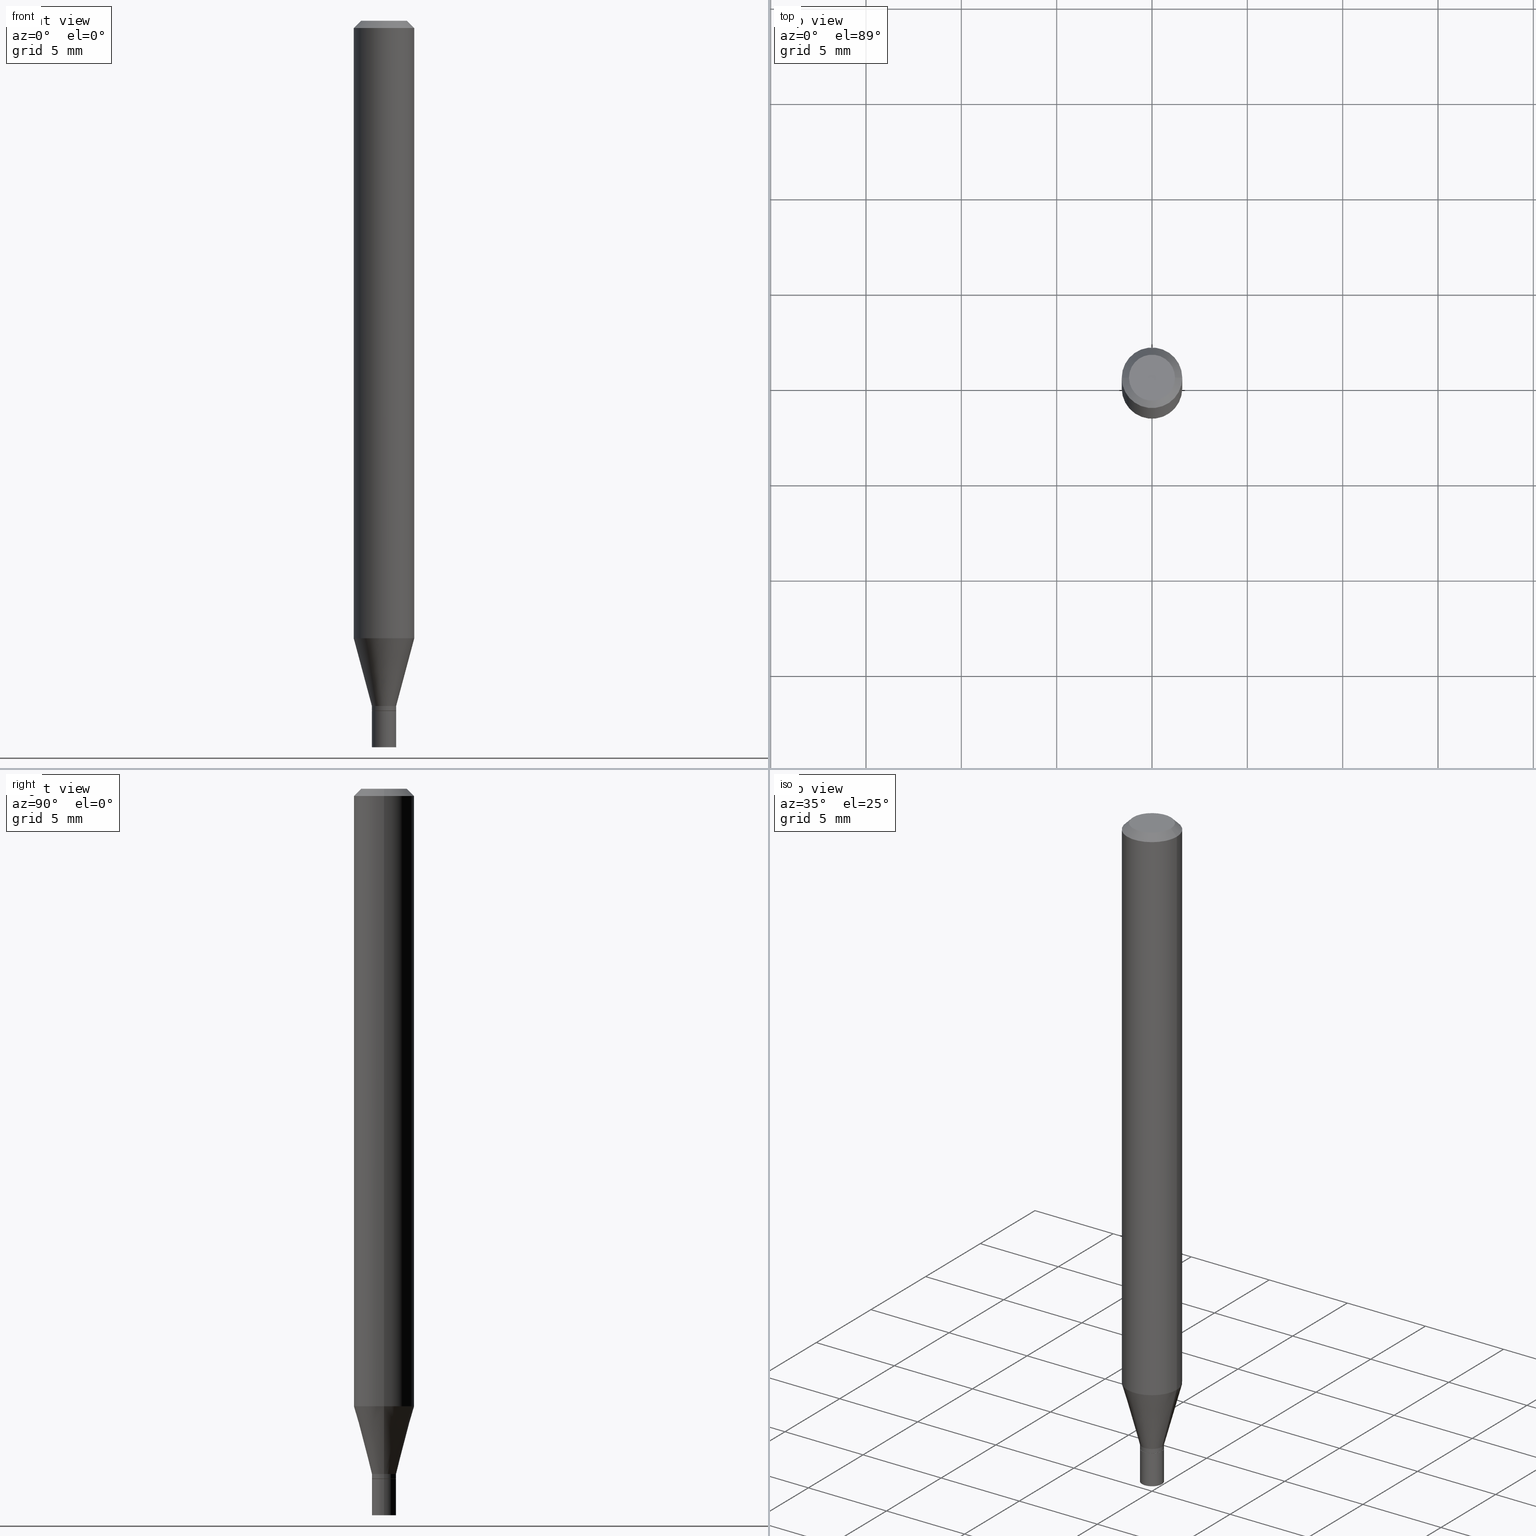
[diagram: canonical four-view strip — front | top / right | iso, engineering-drawing reading convention]
A machine part, canonical four-view strip (front | top / right | iso — engineering-drawing reading convention). The complete STEP part file that produces these views, byte-faithful:
ISO-10303-21;
HEADER;
FILE_DESCRIPTION (( 'STEP AP203' ),
    '1' );
FILE_NAME ('02377.STEP',
    '2024-03-18T20:18:09',
    ( '' ),
    ( '' ),
    'SwSTEP 2.0',
    'SolidWorks 2023',
    '' );
FILE_SCHEMA (( 'CONFIG_CONTROL_DESIGN' ));
ENDSEC;

DATA;
#1 = FACE_OUTER_BOUND ( 'NONE', #279, .T. ) ;
#2 = DIRECTION ( 'NONE',  ( -2.445468806185136597E-29, 3.491481338843145583E-15, 1.000000000000000000 ) ) ;
#3 = CARTESIAN_POINT ( 'NONE',  ( 0.000000000000000000, 0.000000000000000000, 0.000000000000000000 ) ) ;
#4 = DIRECTION ( 'NONE',  ( 1.000000000000000000, 0.000000000000000000, 0.000000000000000000 ) ) ;
#5 = CYLINDRICAL_SURFACE ( 'NONE', #457, 0.02500000000000000139 ) ;
#6 = EDGE_CURVE ( 'NONE', #87, #203, #281, .T. ) ;
#7 = DIRECTION ( 'NONE',  ( -2.445468806185136597E-29, 3.491481338843145583E-15, 1.000000000000000000 ) ) ;
#8 = CALENDAR_DATE ( 2024, 18, 3 ) ;
#9 = DIRECTION ( 'NONE',  ( -2.445468806185136597E-29, 3.491481338843145583E-15, 1.000000000000000000 ) ) ;
#10 = DATE_TIME_ROLE ( 'classification_date' ) ;
#11 = VERTEX_POINT ( 'NONE', #283 ) ;
#12 = FACE_OUTER_BOUND ( 'NONE', #309, .T. ) ;
#13 = CONICAL_SURFACE ( 'NONE', #227, 0.02450000000000000094, 0.7853981633974739252 ) ;
#14 = ORIENTED_EDGE ( 'NONE', *, *, #115, .T. ) ;
#15 = LINE ( 'NONE', #158, #332 ) ;
#16 = EDGE_CURVE ( 'NONE', #90, #98, #286, .T. ) ;
#17 = DIRECTION ( 'NONE',  ( 1.000000000000000000, -6.982962677686254878E-15, 0.000000000000000000 ) ) ;
#18 = CARTESIAN_POINT ( 'NONE',  ( -0.02450000000000000094, -4.801277937590258869E-15, -1.425000000000000266 ) ) ;
#19 = ORIENTED_EDGE ( 'NONE', *, *, #420, .F. ) ;
#20 = PERSON_AND_ORGANIZATION ( #206, #288 ) ;
#21 = AXIS2_PLACEMENT_3D ( 'NONE', #329, #263, #4 ) ;
#22 = ORIENTED_EDGE ( 'NONE', *, *, #243, .T. ) ;
#23 = CC_DESIGN_SECURITY_CLASSIFICATION ( #421, ( #451 ) ) ;
#24 = CARTESIAN_POINT ( 'NONE',  ( 3.483570314410727746E-29, -4.973615167182062460E-15, -1.424500000000000322 ) ) ;
#25 = ORIENTED_EDGE ( 'NONE', *, *, #331, .T. ) ;
#26 = EDGE_LOOP ( 'NONE', ( #303, #282, #52, #459 ) ) ;
#27 = ORIENTED_EDGE ( 'NONE', *, *, #16, .F. ) ;
#28 = AXIS2_PLACEMENT_3D ( 'NONE', #403, #231, #289 ) ;
#29 = EDGE_CURVE ( 'NONE', #128, #196, #361, .T. ) ;
#30 = DIRECTION ( 'NONE',  ( 1.000000000000000000, -6.982962677686267499E-15, 4.852736867747366768E-29 ) ) ;
#31 = CARTESIAN_POINT ( 'NONE',  ( 0.02450000000000000094, -5.146443493454796836E-15, -1.425000000000000266 ) ) ;
#32 = CARTESIAN_POINT ( 'NONE',  ( -0.02499999999999992853, 1.776356839400245386E-16, -1.229733772563722977E-30 ) ) ;
#33 = PRODUCT_DEFINITION ( 'UNKNOWN', '', #451, #318 ) ;
#34 = CIRCLE ( 'NONE', #442, 0.02450000000000000094 ) ;
#35 = AXIS2_PLACEMENT_3D ( 'NONE', #170, #69, #211 ) ;
#36 = PLANE ( 'NONE',  #202 ) ;
#37 = CYLINDRICAL_SURFACE ( 'NONE', #310, 0.06250000000000000000 ) ;
#38 = APPROVAL_DATE_TIME ( #260, #384 ) ;
#39 = AXIS2_PLACEMENT_3D ( 'NONE', #365, #108, #394 ) ;
#40 = CONICAL_SURFACE ( 'NONE', #183, 0.02499999999999992853, 0.2617993877991500740 ) ;
#41 = PLANE ( 'NONE',  #174 ) ;
#42 = EDGE_CURVE ( 'NONE', #98, #90, #34, .T. ) ;
#43 = VERTEX_POINT ( 'NONE', #140 ) ;
#44 = DIRECTION ( 'NONE',  ( -2.445468806185136597E-29, 3.491481338843145583E-15, 1.000000000000000000 ) ) ;
#45 = ORIENTED_EDGE ( 'NONE', *, *, #424, .F. ) ;
#46 = ORIENTED_EDGE ( 'NONE', *, *, #151, .T. ) ;
#47 = EDGE_CURVE ( 'NONE', #117, #11, #301, .T. ) ;
#48 = DIRECTION ( 'NONE',  ( -2.445468806185136877E-29, 3.491481338843145188E-15, 1.000000000000000000 ) ) ;
#49 = CLOSED_SHELL ( 'NONE', ( #340, #234, #463, #65, #262, #248, #168, #63, #219, #298, #441, #371 ) ) ;
#50 = VECTOR ( 'NONE', #189, 39.37007874015748143 ) ;
#51 = LOCAL_TIME ( 16, 18, 9.000000000000000000, #334 ) ;
#52 = ORIENTED_EDGE ( 'NONE', *, *, #84, .F. ) ;
#53 = DIRECTION ( 'NONE',  ( 1.000000000000000000, -6.982962677686276177E-15, 0.000000000000000000 ) ) ;
#54 = DIRECTION ( 'NONE',  ( -2.445468806185136597E-29, 3.491481338843145583E-15, 1.000000000000000000 ) ) ;
#55 = CARTESIAN_POINT ( 'NONE',  ( 0.02499999999999992506, -5.148189234124218339E-15, -1.424500000000000322 ) ) ;
#56 = EDGE_CURVE ( 'NONE', #232, #376, #59, .T. ) ;
#57 = ORIENTED_EDGE ( 'NONE', *, *, #95, .T. ) ;
#58 = DIRECTION ( 'NONE',  ( -2.445468806185136597E-29, 3.491481338843145583E-15, 1.000000000000000000 ) ) ;
#59 = CIRCLE ( 'NONE', #156, 0.02499999999999992853 ) ;
#60 = ORIENTED_EDGE ( 'NONE', *, *, #380, .F. ) ;
#61 = EDGE_CURVE ( 'NONE', #204, #164, #427, .T. ) ;
#62 = ORIENTED_EDGE ( 'NONE', *, *, #121, .T. ) ;
#63 = ADVANCED_FACE ( 'NONE', ( #258 ), #238, .T. ) ;
#64 = CIRCLE ( 'NONE', #294, 0.02499999999999992506 ) ;
#65 = ADVANCED_FACE ( 'NONE', ( #391 ), #37, .T. ) ;
#66 = DIRECTION ( 'NONE',  ( 1.000000000000000000, -6.982962677686266711E-15, 4.876176775795935793E-29 ) ) ;
#67 = COORDINATED_UNIVERSAL_TIME_OFFSET ( 5, 0, .BEHIND. ) ;
#68 = DIRECTION ( 'NONE',  ( 1.000000000000000000, -6.982962677686274599E-15, 0.000000000000000000 ) ) ;
#69 = DIRECTION ( 'NONE',  ( -2.445468806185136597E-29, 3.491481338843145583E-15, 1.000000000000000000 ) ) ;
#70 = DIRECTION ( 'NONE',  ( -0.7071067811865604513, 2.468850131082393139E-15, -0.7071067811865343611 ) ) ;
#71 = AXIS2_PLACEMENT_3D ( 'NONE', #99, #2, #146 ) ;
#72 = VECTOR ( 'NONE', #362, 39.37007874015748143 ) ;
#73 = DIRECTION ( 'NONE',  ( 0.2588190451025213501, 1.565188264969621968E-15, 0.9659258262890682012 ) ) ;
#74 =( NAMED_UNIT ( * ) SI_UNIT ( $, .STERADIAN. ) SOLID_ANGLE_UNIT ( ) );
#75 = CC_DESIGN_PERSON_AND_ORGANIZATION_ASSIGNMENT ( #233, #456, ( #451 ) ) ;
#76 = DIRECTION ( 'NONE',  ( -0.7071067811865656694, 7.493145998870420424E-15, 0.7071067811865294761 ) ) ;
#77 = FACE_OUTER_BOUND ( 'NONE', #446, .T. ) ;
#78 = ORIENTED_EDGE ( 'NONE', *, *, #118, .F. ) ;
#79 = CARTESIAN_POINT ( 'NONE',  ( 3.483570314410727746E-29, -4.973615167182062460E-15, -1.424500000000000322 ) ) ;
#80 = DATE_AND_TIME ( #377, #175 ) ;
#81 = CIRCLE ( 'NONE', #240, 0.06250000000000000000 ) ;
#82 = CARTESIAN_POINT ( 'NONE',  ( 0.06250000000000000000, -4.364351673553916694E-16, 3.047610484872459871E-30 ) ) ;
#83 = ORIENTED_EDGE ( 'NONE', *, *, #314, .T. ) ;
#84 = EDGE_CURVE ( 'NONE', #128, #461, #359, .T. ) ;
#85 = EDGE_LOOP ( 'NONE', ( #205, #226, #62, #78 ) ) ;
#86 = PERSON_AND_ORGANIZATION ( #206, #288 ) ;
#87 = VERTEX_POINT ( 'NONE', #208 ) ;
#88 = CARTESIAN_POINT ( 'NONE',  ( 0.000000000000000000, 0.000000000000000000, 0.000000000000000000 ) ) ;
#89 = AXIS2_PLACEMENT_3D ( 'NONE', #221, #368, #68 ) ;
#90 = VERTEX_POINT ( 'NONE', #31 ) ;
#91 = CALENDAR_DATE ( 2024, 18, 3 ) ;
#92 = DIRECTION ( 'NONE',  ( -2.445468806185136597E-29, 3.491481338843145583E-15, 1.000000000000000000 ) ) ;
#93 = DIRECTION ( 'NONE',  ( 1.000000000000000000, -6.982962677686262766E-15, 0.000000000000000000 ) ) ;
#94 = EDGE_LOOP ( 'NONE', ( #46, #415, #358, #167 ) ) ;
#95 = EDGE_CURVE ( 'NONE', #203, #87, #109, .T. ) ;
#96 = CIRCLE ( 'NONE', #162, 0.02499999999999992506 ) ;
#97 = EDGE_LOOP ( 'NONE', ( #336, #458, #235, #460 ) ) ;
#98 = VERTEX_POINT ( 'NONE', #169 ) ;
#99 = CARTESIAN_POINT ( 'NONE',  ( 3.668203209277704895E-29, -5.237222008264718177E-15, -1.500000000000000222 ) ) ;
#100 = CARTESIAN_POINT ( 'NONE',  ( 3.484793048813820547E-29, -4.975360907851483175E-15, -1.425000000000000266 ) ) ;
#101 = AXIS2_PLACEMENT_3D ( 'NONE', #381, #7, #348 ) ;
#102 = DIRECTION ( 'NONE',  ( -2.445468806185136597E-29, 3.491481338843145583E-15, 1.000000000000000000 ) ) ;
#103 = DATE_AND_TIME ( #153, #166 ) ;
#104 = DIRECTION ( 'NONE',  ( -2.438088387897960049E-29, 3.491481338843145188E-15, 1.000000000000000000 ) ) ;
#105 = DIRECTION ( 'NONE',  ( -2.445468806185136597E-29, 3.491481338843145583E-15, 1.000000000000000000 ) ) ;
#106 = PERSON_AND_ORGANIZATION_ROLE ( 'creator' ) ;
#107 = DIRECTION ( 'NONE',  ( -2.445468806185136597E-29, 3.491481338843145583E-15, 1.000000000000000000 ) ) ;
#108 = DIRECTION ( 'NONE',  ( -2.445468806185136597E-29, 3.491481338843145583E-15, 1.000000000000000000 ) ) ;
#109 = CIRCLE ( 'NONE', #195, 0.04749999999999999362 ) ;
#110 = AXIS2_PLACEMENT_3D ( 'NONE', #3, #347, #369 ) ;
#111 = CYLINDRICAL_SURFACE ( 'NONE', #465, 0.06250000000000000000 ) ;
#112 =( CONVERSION_BASED_UNIT ( 'INCH', #171 ) LENGTH_UNIT ( ) NAMED_UNIT ( #216 ) );
#113 = PRODUCT ( '02377', '02377', '', ( #254 ) ) ;
#114 = PLANE ( 'NONE',  #122 ) ;
#115 = EDGE_CURVE ( 'NONE', #454, #196, #81, .T. ) ;
#116 = CARTESIAN_POINT ( 'NONE',  ( -0.02500000000000000139, -4.928655774118075472E-15, -1.500000000000000222 ) ) ;
#117 = VERTEX_POINT ( 'NONE', #178 ) ;
#118 = EDGE_CURVE ( 'NONE', #376, #232, #393, .T. ) ;
#119 = ORIENTED_EDGE ( 'NONE', *, *, #129, .T. ) ;
#120 = AXIS2_PLACEMENT_3D ( 'NONE', #349, #92, #163 ) ;
#121 = EDGE_CURVE ( 'NONE', #130, #232, #363, .T. ) ;
#122 = AXIS2_PLACEMENT_3D ( 'NONE', #402, #322, #367 ) ;
#123 = CC_DESIGN_APPROVAL ( #308, ( #451 ) ) ;
#124 = ORIENTED_EDGE ( 'NONE', *, *, #352, .T. ) ;
#125 = ORIENTED_EDGE ( 'NONE', *, *, #430, .F. ) ;
#126 = CARTESIAN_POINT ( 'NONE',  ( -0.06250000000000001388, -4.007717418978942661E-15, -1.275048094716167313 ) ) ;
#127 = CONICAL_SURFACE ( 'NONE', #89, 0.02499999999999992853, 0.2617993877991500740 ) ;
#128 = VERTEX_POINT ( 'NONE', #291 ) ;
#129 = EDGE_CURVE ( 'NONE', #461, #128, #207, .T. ) ;
#130 = VERTEX_POINT ( 'NONE', #55 ) ;
#131 = EDGE_LOOP ( 'NONE', ( #299, #245 ) ) ;
#132 = ADVANCED_FACE ( 'NONE', ( #378 ), #386, .T. ) ;
#133 = VECTOR ( 'NONE', #48, 39.37007874015748143 ) ;
#134 = APPROVAL_PERSON_ORGANIZATION ( #432, #308, #179 ) ;
#135 = EDGE_LOOP ( 'NONE', ( #27, #383 ) ) ;
#136 = ORIENTED_EDGE ( 'NONE', *, *, #84, .T. ) ;
#137 = DIRECTION ( 'NONE',  ( 1.000000000000000000, -6.982962677686266711E-15, 0.000000000000000000 ) ) ;
#138 = CC_DESIGN_PERSON_AND_ORGANIZATION_ASSIGNMENT ( #20, #422, ( #451 ) ) ;
#139 = DIRECTION ( 'NONE',  ( 0.7071067811865604513, -7.319954787623298644E-15, -0.7071067811865343611 ) ) ;
#140 = CARTESIAN_POINT ( 'NONE',  ( -0.02499999999999992506, -4.795979483242038045E-15, -1.424500000000000322 ) ) ;
#141 = AXIS2_PLACEMENT_3D ( 'NONE', #197, #9, #194 ) ;
#142 = APPROVAL_ROLE ( '' ) ;
#143 = FACE_OUTER_BOUND ( 'NONE', #135, .T. ) ;
#144 = DIRECTION ( 'NONE',  ( 1.000000000000000000, -6.982962677686273810E-15, 0.000000000000000000 ) ) ;
#145 = EDGE_CURVE ( 'NONE', #130, #43, #64, .T. ) ;
#146 = DIRECTION ( 'NONE',  ( 1.000000000000000000, -6.982962677686254878E-15, 0.000000000000000000 ) ) ;
#147 = DIRECTION ( 'NONE',  ( -2.445468806185136597E-29, 3.491481338843145583E-15, 1.000000000000000000 ) ) ;
#148 = AXIS2_PLACEMENT_3D ( 'NONE', #438, #425, #93 ) ;
#149 = APPROVAL_PERSON_ORGANIZATION ( #185, #384, #142 ) ;
#150 = DIRECTION ( 'NONE',  ( 1.000000000000000000, -6.982962677686267499E-15, 4.876176775795936353E-29 ) ) ;
#151 = EDGE_CURVE ( 'NONE', #164, #204, #275, .T. ) ;
#152 = CARTESIAN_POINT ( 'NONE',  ( 3.668203209277705088E-31, -5.237222008264718399E-17, -0.01499999999999999944 ) ) ;
#153 = CALENDAR_DATE ( 2024, 18, 3 ) ;
#154 = CC_DESIGN_DATE_AND_TIME_ASSIGNMENT ( #350, #10, ( #421 ) ) ;
#155 = CARTESIAN_POINT ( 'NONE',  ( 3.460338360751968441E-29, -4.940446094463050737E-15, -1.415000000000000036 ) ) ;
#156 = AXIS2_PLACEMENT_3D ( 'NONE', #155, #319, #429 ) ;
#157 = CARTESIAN_POINT ( 'NONE',  ( -0.02499999999999992853, -4.385263914750984097E-15, -1.415000000000000036 ) ) ;
#158 = CARTESIAN_POINT ( 'NONE',  ( -0.02499999999999992853, -4.762810410523027111E-15, -1.415000000000000036 ) ) ;
#159 = LINE ( 'NONE', #184, #364 ) ;
#160 = CC_DESIGN_PERSON_AND_ORGANIZATION_ASSIGNMENT ( #439, #106, ( #33 ) ) ;
#161 = ORIENTED_EDGE ( 'NONE', *, *, #452, .F. ) ;
#162 = AXIS2_PLACEMENT_3D ( 'NONE', #79, #337, #53 ) ;
#163 = DIRECTION ( 'NONE',  ( 1.000000000000000000, -6.982962677686267499E-15, 4.852736867747366768E-29 ) ) ;
#164 = VERTEX_POINT ( 'NONE', #382 ) ;
#165 = ORIENTED_EDGE ( 'NONE', *, *, #129, .F. ) ;
#166 = LOCAL_TIME ( 16, 18, 9.000000000000000000, #256 ) ;
#167 = ORIENTED_EDGE ( 'NONE', *, *, #352, .F. ) ;
#168 = ADVANCED_FACE ( 'NONE', ( #12 ), #111, .T. ) ;
#169 = CARTESIAN_POINT ( 'NONE',  ( -0.02450000000000000094, -4.798628710416148457E-15, -1.425000000000000266 ) ) ;
#170 = CARTESIAN_POINT ( 'NONE',  ( 3.460338360751968441E-29, -4.940446094463050737E-15, -1.415000000000000036 ) ) ;
#171 = LENGTH_MEASURE_WITH_UNIT ( LENGTH_MEASURE( 0.02539999999999999897 ), #251 );
#172 = DIRECTION ( 'NONE',  ( -2.445468806185136877E-29, 3.491481338843145188E-15, 1.000000000000000000 ) ) ;
#173 = CARTESIAN_POINT ( 'NONE',  ( 0.02499999999999992853, -1.745740669421561747E-16, 1.219044193948980445E-30 ) ) ;
#174 = AXIS2_PLACEMENT_3D ( 'NONE', #335, #104, #210 ) ;
#175 = LOCAL_TIME ( 16, 18, 9.000000000000000000, #268 ) ;
#176 = LOCAL_TIME ( 16, 18, 9.000000000000000000, #67 ) ;
#177 = LINE ( 'NONE', #32, #450 ) ;
#178 = CARTESIAN_POINT ( 'NONE',  ( 0.02500000000000000139, -5.149934974793639843E-15, -1.425000000000000266 ) ) ;
#179 = APPROVAL_ROLE ( '' ) ;
#180 = FACE_OUTER_BOUND ( 'NONE', #97, .T. ) ;
#181 = PRODUCT_DEFINITION_SHAPE ( 'NONE', 'NONE',  #33 ) ;
#182 = ORIENTED_EDGE ( 'NONE', *, *, #29, .T. ) ;
#183 = AXIS2_PLACEMENT_3D ( 'NONE', #287, #147, #433 ) ;
#184 = CARTESIAN_POINT ( 'NONE',  ( -0.02500000000000000139, 1.776356839400250563E-16, -1.229733772563726656E-30 ) ) ;
#185 = PERSON_AND_ORGANIZATION ( #206, #288 ) ;
#186 = CARTESIAN_POINT ( 'NONE',  ( 0.06250000000000000000, -4.811533449433679005E-16, -0.01499999999999999944 ) ) ;
#187 = ADVANCED_FACE ( 'NONE', ( #255 ), #220, .F. ) ;
#188 = ORIENTED_EDGE ( 'NONE', *, *, #366, .F. ) ;
#189 = DIRECTION ( 'NONE',  ( -2.445468806185136877E-29, 3.491481338843145188E-15, 1.000000000000000000 ) ) ;
#190 = DIRECTION ( 'NONE',  ( 1.000000000000000000, -6.982962677686262766E-15, 0.000000000000000000 ) ) ;
#191 = ORIENTED_EDGE ( 'NONE', *, *, #6, .F. ) ;
#192 = CARTESIAN_POINT ( 'NONE',  ( 3.668203209277704895E-29, -5.237222008264718177E-15, -1.500000000000000222 ) ) ;
#193 = ORIENTED_EDGE ( 'NONE', *, *, #16, .T. ) ;
#194 = DIRECTION ( 'NONE',  ( 1.000000000000000000, -6.982962677686266711E-15, 0.000000000000000000 ) ) ;
#195 = AXIS2_PLACEMENT_3D ( 'NONE', #435, #102, #30 ) ;
#196 = VERTEX_POINT ( 'NONE', #330 ) ;
#197 = CARTESIAN_POINT ( 'NONE',  ( 3.668203209277705088E-31, -5.237222008264718399E-17, -0.01499999999999999944 ) ) ;
#198 = ORIENTED_EDGE ( 'NONE', *, *, #366, .T. ) ;
#199 = SECURITY_CLASSIFICATION_LEVEL ( 'unclassified' ) ;
#200 = ORIENTED_EDGE ( 'NONE', *, *, #61, .T. ) ;
#201 = AXIS2_PLACEMENT_3D ( 'NONE', #313, #54, #320 ) ;
#202 = AXIS2_PLACEMENT_3D ( 'NONE', #409, #261, #257 ) ;
#203 = VERTEX_POINT ( 'NONE', #292 ) ;
#204 = VERTEX_POINT ( 'NONE', #116 ) ;
#205 = ORIENTED_EDGE ( 'NONE', *, *, #285, .F. ) ;
#206 = PERSON ( 'UNSPECIFIED', 'UNSPECIFIED', 'UNSPECIFIED', ('UNSPECIFIED'), ('UNSPECIFIED'), ('UNSPECIFIED') ) ;
#207 = CIRCLE ( 'NONE', #148, 0.06250000000000000000 ) ;
#208 = CARTESIAN_POINT ( 'NONE',  ( 0.04749999999999999362, -4.035134999187587991E-16, -5.475136966724933130E-16 ) ) ;
#209 = ADVANCED_FACE ( 'NONE', ( #252 ), #41, .F. ) ;
#210 = DIRECTION ( 'NONE',  ( 1.000000000000000000, -6.982962677686265922E-15, 4.876176775795935793E-29 ) ) ;
#211 = DIRECTION ( 'NONE',  ( 1.000000000000000000, -6.982962677686274599E-15, 0.000000000000000000 ) ) ;
#212 = LINE ( 'NONE', #326, #316 ) ;
#213 = DIRECTION ( 'NONE',  ( -2.445468806185136877E-29, 3.491481338843145188E-15, 1.000000000000000000 ) ) ;
#214 = AXIS2_PLACEMENT_3D ( 'NONE', #152, #300, #447 ) ;
#215 = EDGE_CURVE ( 'NONE', #90, #130, #297, .T. ) ;
#216 = DIMENSIONAL_EXPONENTS ( 1.000000000000000000, 0.000000000000000000, 0.000000000000000000, 0.000000000000000000, 0.000000000000000000, 0.000000000000000000, 0.000000000000000000 ) ;
#217 = CC_DESIGN_APPROVAL ( #384, ( #33 ) ) ;
#218 = LINE ( 'NONE', #186, #323 ) ;
#219 = ADVANCED_FACE ( 'NONE', ( #1 ), #36, .F. ) ;
#220 = PLANE ( 'NONE',  #428 ) ;
#221 = CARTESIAN_POINT ( 'NONE',  ( 3.460338360751968441E-29, -4.940446094463050737E-15, -1.415000000000000036 ) ) ;
#222 = FACE_OUTER_BOUND ( 'NONE', #426, .T. ) ;
#223 = CC_DESIGN_PERSON_AND_ORGANIZATION_ASSIGNMENT ( #305, #338, ( #421 ) ) ;
#224 = DIRECTION ( 'NONE',  ( -2.445468806185136597E-29, 3.491481338843145583E-15, 1.000000000000000000 ) ) ;
#225 = VECTOR ( 'NONE', #213, 39.37007874015748143 ) ;
#226 = ORIENTED_EDGE ( 'NONE', *, *, #380, .T. ) ;
#227 = AXIS2_PLACEMENT_3D ( 'NONE', #399, #224, #293 ) ;
#228 = FACE_OUTER_BOUND ( 'NONE', #85, .T. ) ;
#229 = CC_DESIGN_APPROVAL ( #321, ( #421 ) ) ;
#230 = SHAPE_DEFINITION_REPRESENTATION ( #181, #360 ) ;
#231 = DIRECTION ( 'NONE',  ( 2.445468806185136597E-29, -3.491481338843145583E-15, -1.000000000000000000 ) ) ;
#232 = VERTEX_POINT ( 'NONE', #396 ) ;
#233 = PERSON_AND_ORGANIZATION ( #206, #288 ) ;
#234 = ADVANCED_FACE ( 'NONE', ( #77 ), #13, .T. ) ;
#235 = ORIENTED_EDGE ( 'NONE', *, *, #56, .F. ) ;
#236 = APPROVAL_DATE_TIME ( #80, #321 ) ;
#237 = EDGE_LOOP ( 'NONE', ( #161, #200, #124, #45 ) ) ;
#238 = CONICAL_SURFACE ( 'NONE', #28, 0.06250000000000000000, 0.7853981633974667087 ) ;
#239 = DIRECTION ( 'NONE',  ( 1.000000000000000000, -6.982962677686254878E-15, 0.000000000000000000 ) ) ;
#240 = AXIS2_PLACEMENT_3D ( 'NONE', #464, #397, #137 ) ;
#241 = DIRECTION ( 'NONE',  ( -2.445468806185136597E-29, 3.491481338843145583E-15, 1.000000000000000000 ) ) ;
#242 = ORIENTED_EDGE ( 'NONE', *, *, #6, .T. ) ;
#243 = EDGE_CURVE ( 'NONE', #87, #196, #218, .T. ) ;
#244 = VECTOR ( 'NONE', #76, 39.37007874015748143 ) ;
#245 = ORIENTED_EDGE ( 'NONE', *, *, #424, .T. ) ;
#246 = APPLICATION_CONTEXT ( 'configuration controlled 3d designs of mechanical parts and assemblies' ) ;
#247 = DIRECTION ( 'NONE',  ( -2.445468806185136597E-29, 3.491481338843145583E-15, 1.000000000000000000 ) ) ;
#248 = ADVANCED_FACE ( 'NONE', ( #466 ), #40, .T. ) ;
#249 = AXIS2_PLACEMENT_3D ( 'NONE', #351, #58, #355 ) ;
#250 = DIRECTION ( 'NONE',  ( -2.445468806185136597E-29, 3.491481338843145583E-15, 1.000000000000000000 ) ) ;
#251 =( LENGTH_UNIT ( ) NAMED_UNIT ( * ) SI_UNIT ( $, .METRE. ) );
#252 = FACE_OUTER_BOUND ( 'NONE', #387, .T. ) ;
#253 = CARTESIAN_POINT ( 'NONE',  ( 3.118090342014178512E-29, -4.451806628829006066E-15, -1.275048094716167313 ) ) ;
#254 = MECHANICAL_CONTEXT ( 'NONE', #246, 'mechanical' ) ;
#255 = FACE_OUTER_BOUND ( 'NONE', #131, .T. ) ;
#256 = COORDINATED_UNIVERSAL_TIME_OFFSET ( 5, 0, .BEHIND. ) ;
#257 = DIRECTION ( 'NONE',  ( -1.000000000000000000, 6.982962677686265922E-15, -4.876176775795935793E-29 ) ) ;
#258 = FACE_OUTER_BOUND ( 'NONE', #356, .T. ) ;
#259 = APPROVAL_PERSON_ORGANIZATION ( #86, #321, #418 ) ;
#260 = DATE_AND_TIME ( #8, #51 ) ;
#261 = DIRECTION ( 'NONE',  ( 2.438088387897960049E-29, -3.491481338843145188E-15, -1.000000000000000000 ) ) ;
#262 = ADVANCED_FACE ( 'NONE', ( #407 ), #127, .T. ) ;
#263 = DIRECTION ( 'NONE',  ( 0.000000000000000000, 0.000000000000000000, 1.000000000000000000 ) ) ;
#264 = CARTESIAN_POINT ( 'NONE',  ( 0.02450000000000000094, -5.146443493454796836E-15, -1.425000000000000266 ) ) ;
#265 = DIRECTION ( 'NONE',  ( -0.2588190451025213501, 5.211531920934551042E-15, 0.9659258262890682012 ) ) ;
#266 = ORIENTED_EDGE ( 'NONE', *, *, #115, .F. ) ;
#267 = VECTOR ( 'NONE', #324, 39.37007874015748143 ) ;
#268 = COORDINATED_UNIVERSAL_TIME_OFFSET ( 5, 0, .BEHIND. ) ;
#269 = ORIENTED_EDGE ( 'NONE', *, *, #29, .F. ) ;
#270 = DIRECTION ( 'NONE',  ( 2.438088387897960049E-29, -3.491481338843145188E-15, -1.000000000000000000 ) ) ;
#271 = ORIENTED_EDGE ( 'NONE', *, *, #413, .F. ) ;
#272 = AXIS2_PLACEMENT_3D ( 'NONE', #253, #247, #190 ) ;
#273 = DIRECTION ( 'NONE',  ( -2.445468806185136597E-29, 3.491481338843145583E-15, 1.000000000000000000 ) ) ;
#274 = APPROVAL_DATE_TIME ( #400, #308 ) ;
#275 = CIRCLE ( 'NONE', #388, 0.02500000000000000139 ) ;
#276 = ORIENTED_EDGE ( 'NONE', *, *, #243, .F. ) ;
#277 = ADVANCED_FACE ( 'NONE', ( #440 ), #5, .T. ) ;
#278 = MANIFOLD_SOLID_BREP ( 'Body-Move/Copy2[1]', #372 ) ;
#279 = EDGE_LOOP ( 'NONE', ( #57, #242 ) ) ;
#280 = ORIENTED_EDGE ( 'NONE', *, *, #61, .F. ) ;
#281 = CIRCLE ( 'NONE', #120, 0.04749999999999999362 ) ;
#282 = ORIENTED_EDGE ( 'NONE', *, *, #430, .T. ) ;
#283 = CARTESIAN_POINT ( 'NONE',  ( -0.02500000000000000139, -4.928655774118075472E-15, -1.425000000000000266 ) ) ;
#284 = CARTESIAN_POINT ( 'NONE',  ( 0.000000000000000000, 0.000000000000000000, 0.000000000000000000 ) ) ;
#285 = EDGE_CURVE ( 'NONE', #43, #376, #177, .T. ) ;
#286 = CIRCLE ( 'NONE', #201, 0.02450000000000000094 ) ;
#287 = CARTESIAN_POINT ( 'NONE',  ( 3.460338360751968441E-29, -4.940446094463050737E-15, -1.415000000000000036 ) ) ;
#288 = ORGANIZATION ( 'UNSPECIFIED', 'UNSPECIFIED', '' ) ;
#289 = DIRECTION ( 'NONE',  ( -1.000000000000000000, 6.982962677686266711E-15, 0.000000000000000000 ) ) ;
#290 = LINE ( 'NONE', #437, #389 ) ;
#291 = CARTESIAN_POINT ( 'NONE',  ( 0.06250000000000001388, -4.888241796184397736E-15, -1.275048094716167313 ) ) ;
#292 = CARTESIAN_POINT ( 'NONE',  ( -0.04749999999999999362, 3.578768372314200645E-16, -5.475136966724983420E-16 ) ) ;
#293 = DIRECTION ( 'NONE',  ( 1.000000000000000000, -6.982962677686273810E-15, 0.000000000000000000 ) ) ;
#294 = AXIS2_PLACEMENT_3D ( 'NONE', #24, #241, #449 ) ;
#295 = CARTESIAN_POINT ( 'NONE',  ( 0.000000000000000000, 0.000000000000000000, 0.000000000000000000 ) ) ;
#296 = APPLICATION_PROTOCOL_DEFINITION ( 'international standard', 'config_control_design', 1994, #312 ) ;
#297 = LINE ( 'NONE', #264, #72 ) ;
#298 = ADVANCED_FACE ( 'NONE', ( #143 ), #114, .F. ) ;
#299 = ORIENTED_EDGE ( 'NONE', *, *, #47, .T. ) ;
#300 = DIRECTION ( 'NONE',  ( 2.445468806185136597E-29, -3.491481338843145583E-15, -1.000000000000000000 ) ) ;
#301 = CIRCLE ( 'NONE', #39, 0.02500000000000000139 ) ;
#302 = LINE ( 'NONE', #18, #244 ) ;
#303 = ORIENTED_EDGE ( 'NONE', *, *, #56, .T. ) ;
#304 = CARTESIAN_POINT ( 'NONE',  ( 0.02500000000000000139, -1.745740669421566924E-16, 1.219044193948984123E-30 ) ) ;
#305 = PERSON_AND_ORGANIZATION ( #206, #288 ) ;
#306 = ORIENTED_EDGE ( 'NONE', *, *, #413, .T. ) ;
#307 = DIRECTION ( 'NONE',  ( -2.445468806185136877E-29, 3.491481338843145188E-15, 1.000000000000000000 ) ) ;
#308 = APPROVAL ( #395, 'UNSPECIFIED' ) ;
#309 = EDGE_LOOP ( 'NONE', ( #188, #119, #182, #266 ) ) ;
#310 = AXIS2_PLACEMENT_3D ( 'NONE', #284, #44, #66 ) ;
#311 = CONICAL_SURFACE ( 'NONE', #101, 0.02450000000000000094, 0.7853981633974739252 ) ;
#312 = APPLICATION_CONTEXT ( 'configuration controlled 3d designs of mechanical parts and assemblies' ) ;
#313 = CARTESIAN_POINT ( 'NONE',  ( 3.484793048813820547E-29, -4.975360907851483175E-15, -1.425000000000000266 ) ) ;
#314 = EDGE_CURVE ( 'NONE', #203, #454, #290, .T. ) ;
#315 = ORIENTED_EDGE ( 'NONE', *, *, #420, .T. ) ;
#316 = VECTOR ( 'NONE', #73, 39.37007874015747433 ) ;
#317 = ORIENTED_EDGE ( 'NONE', *, *, #145, .F. ) ;
#318 = DESIGN_CONTEXT ( 'detailed design', #312, 'design' ) ;
#319 = DIRECTION ( 'NONE',  ( -2.445468806185136597E-29, 3.491481338843145583E-15, 1.000000000000000000 ) ) ;
#320 = DIRECTION ( 'NONE',  ( 1.000000000000000000, -6.982962677686273810E-15, 0.000000000000000000 ) ) ;
#321 = APPROVAL ( #412, 'UNSPECIFIED' ) ;
#322 = DIRECTION ( 'NONE',  ( -2.438088387897960049E-29, 3.491481338843145188E-15, 1.000000000000000000 ) ) ;
#323 = VECTOR ( 'NONE', #139, 39.37007874015748854 ) ;
#324 = DIRECTION ( 'NONE',  ( -2.445468806185136877E-29, 3.491481338843145188E-15, 1.000000000000000000 ) ) ;
#325 =( NAMED_UNIT ( * ) PLANE_ANGLE_UNIT ( ) SI_UNIT ( $, .RADIAN. ) );
#326 = CARTESIAN_POINT ( 'NONE',  ( 0.02499999999999992853, -5.115020161405207405E-15, -1.415000000000000036 ) ) ;
#327 = CALENDAR_DATE ( 2024, 18, 3 ) ;
#328 = CYLINDRICAL_SURFACE ( 'NONE', #110, 0.02499999999999992853 ) ;
#329 = CARTESIAN_POINT ( 'NONE',  ( 0.000000000000000000, 0.000000000000000000, 0.000000000000000000 ) ) ;
#330 = CARTESIAN_POINT ( 'NONE',  ( 0.06250000000000000000, -4.888073874380388472E-16, -0.01499999999999999944 ) ) ;
#331 = EDGE_CURVE ( 'NONE', #232, #128, #212, .T. ) ;
#332 = VECTOR ( 'NONE', #265, 39.37007874015747433 ) ;
#333 = LINE ( 'NONE', #304, #133 ) ;
#334 = COORDINATED_UNIVERSAL_TIME_OFFSET ( 5, 0, .BEHIND. ) ;
#335 = CARTESIAN_POINT ( 'NONE',  ( 3.576687321579069994E-29, -5.368277968210015545E-15, -1.500000000000000222 ) ) ;
#336 = ORIENTED_EDGE ( 'NONE', *, *, #145, .T. ) ;
#337 = DIRECTION ( 'NONE',  ( -2.445468806185136597E-29, 3.491481338843145583E-15, 1.000000000000000000 ) ) ;
#338 = PERSON_AND_ORGANIZATION_ROLE ( 'classification_officer' ) ;
#339 = EDGE_LOOP ( 'NONE', ( #125, #379, #25, #165 ) ) ;
#340 = ADVANCED_FACE ( 'NONE', ( #180 ), #328, .T. ) ;
#341 = DIRECTION ( 'NONE',  ( -1.000000000000000000, 6.982962677686265922E-15, -4.876176775795935793E-29 ) ) ;
#342 = DIRECTION ( 'NONE',  ( -2.445468806185136597E-29, 3.491481338843145583E-15, 1.000000000000000000 ) ) ;
#343 = CIRCLE ( 'NONE', #431, 0.02500000000000000139 ) ;
#344 = ORIENTED_EDGE ( 'NONE', *, *, #215, .T. ) ;
#345 = CARTESIAN_POINT ( 'NONE',  ( 3.484793048813820547E-29, -4.975360907851483175E-15, -1.425000000000000266 ) ) ;
#346 = COORDINATED_UNIVERSAL_TIME_OFFSET ( 5, 0, .BEHIND. ) ;
#347 = DIRECTION ( 'NONE',  ( -2.445468806185136597E-29, 3.491481338843145583E-15, 1.000000000000000000 ) ) ;
#348 = DIRECTION ( 'NONE',  ( 1.000000000000000000, -6.982962677686273810E-15, 0.000000000000000000 ) ) ;
#349 = CARTESIAN_POINT ( 'NONE',  ( 1.338927666171699620E-44, -1.911633854693045944E-30, -5.475136966724958768E-16 ) ) ;
#350 = DATE_AND_TIME ( #91, #414 ) ;
#351 = CARTESIAN_POINT ( 'NONE',  ( 0.000000000000000000, 0.000000000000000000, 0.000000000000000000 ) ) ;
#352 = EDGE_CURVE ( 'NONE', #164, #117, #333, .T. ) ;
#353 = EDGE_LOOP ( 'NONE', ( #136, #198, #271, #269 ) ) ;
#354 = CIRCLE ( 'NONE', #141, 0.06250000000000000000 ) ;
#355 = DIRECTION ( 'NONE',  ( 1.000000000000000000, -6.982962677686267499E-15, 4.876176775795936353E-29 ) ) ;
#356 = EDGE_LOOP ( 'NONE', ( #276, #374, #83, #14 ) ) ;
#357 = PRODUCT_RELATED_PRODUCT_CATEGORY ( 'detail', '', ( #113 ) ) ;
#358 = ORIENTED_EDGE ( 'NONE', *, *, #47, .F. ) ;
#359 = CIRCLE ( 'NONE', #272, 0.06250000000000000000 ) ;
#360 = ADVANCED_BREP_SHAPE_REPRESENTATION ( '02377', ( #278, #434, #21 ), #401 ) ;
#361 = LINE ( 'NONE', #82, #225 ) ;
#362 = DIRECTION ( 'NONE',  ( 0.7071067811865656694, -2.468850131082446387E-15, 0.7071067811865294761 ) ) ;
#363 = LINE ( 'NONE', #173, #267 ) ;
#364 = VECTOR ( 'NONE', #307, 39.37007874015748143 ) ;
#365 = CARTESIAN_POINT ( 'NONE',  ( 3.484793048813820547E-29, -4.975360907851483175E-15, -1.425000000000000266 ) ) ;
#366 = EDGE_CURVE ( 'NONE', #461, #454, #448, .T. ) ;
#367 = DIRECTION ( 'NONE',  ( 1.000000000000000000, -6.982962677686265922E-15, 4.876176775795935793E-29 ) ) ;
#368 = DIRECTION ( 'NONE',  ( -2.445468806185136597E-29, 3.491481338843145583E-15, 1.000000000000000000 ) ) ;
#369 = DIRECTION ( 'NONE',  ( 1.000000000000000000, -6.982962677686266711E-15, 4.876176775795935793E-29 ) ) ;
#370 = PERSON_AND_ORGANIZATION ( #206, #288 ) ;
#371 = ADVANCED_FACE ( 'NONE', ( #228 ), #411, .T. ) ;
#372 = CLOSED_SHELL ( 'NONE', ( #277, #209, #132, #187 ) ) ;
#373 = CONICAL_SURFACE ( 'NONE', #214, 0.06250000000000000000, 0.7853981633974667087 ) ;
#374 = ORIENTED_EDGE ( 'NONE', *, *, #95, .F. ) ;
#375 = DIRECTION ( 'NONE',  ( -2.445468806185136597E-29, 3.491481338843145583E-15, 1.000000000000000000 ) ) ;
#376 = VERTEX_POINT ( 'NONE', #157 ) ;
#377 = CALENDAR_DATE ( 2024, 18, 3 ) ;
#378 = FACE_OUTER_BOUND ( 'NONE', #237, .T. ) ;
#379 = ORIENTED_EDGE ( 'NONE', *, *, #118, .T. ) ;
#380 = EDGE_CURVE ( 'NONE', #43, #130, #96, .T. ) ;
#381 = CARTESIAN_POINT ( 'NONE',  ( 3.484793048813820547E-29, -4.975360907851483175E-15, -1.425000000000000266 ) ) ;
#382 = CARTESIAN_POINT ( 'NONE',  ( 0.02500000000000000139, -5.411796075206874844E-15, -1.500000000000000222 ) ) ;
#383 = ORIENTED_EDGE ( 'NONE', *, *, #42, .F. ) ;
#384 = APPROVAL ( #436, 'UNSPECIFIED' ) ;
#385 = EDGE_LOOP ( 'NONE', ( #19, #390, #344, #60 ) ) ;
#386 = CYLINDRICAL_SURFACE ( 'NONE', #249, 0.02500000000000000139 ) ;
#387 = EDGE_LOOP ( 'NONE', ( #410, #280 ) ) ;
#388 = AXIS2_PLACEMENT_3D ( 'NONE', #192, #342, #17 ) ;
#389 = VECTOR ( 'NONE', #70, 39.37007874015748854 ) ;
#390 = ORIENTED_EDGE ( 'NONE', *, *, #42, .T. ) ;
#391 = FACE_OUTER_BOUND ( 'NONE', #353, .T. ) ;
#392 = CC_DESIGN_DATE_AND_TIME_ASSIGNMENT ( #103, #398, ( #33 ) ) ;
#393 = CIRCLE ( 'NONE', #35, 0.02499999999999992853 ) ;
#394 = DIRECTION ( 'NONE',  ( 1.000000000000000000, -6.982962677686254878E-15, 0.000000000000000000 ) ) ;
#395 = APPROVAL_STATUS ( 'not_yet_approved' ) ;
#396 = CARTESIAN_POINT ( 'NONE',  ( 0.02499999999999992853, -5.115020161405207405E-15, -1.415000000000000036 ) ) ;
#397 = DIRECTION ( 'NONE',  ( -2.445468806185136597E-29, 3.491481338843145583E-15, 1.000000000000000000 ) ) ;
#398 = DATE_TIME_ROLE ( 'creation_date' ) ;
#399 = CARTESIAN_POINT ( 'NONE',  ( 3.484793048813820547E-29, -4.975360907851483175E-15, -1.425000000000000266 ) ) ;
#400 = DATE_AND_TIME ( #327, #176 ) ;
#401 =( GEOMETRIC_REPRESENTATION_CONTEXT ( 3 ) GLOBAL_UNCERTAINTY_ASSIGNED_CONTEXT ( ( #419 ) ) GLOBAL_UNIT_ASSIGNED_CONTEXT ( ( #112, #325, #74 ) ) REPRESENTATION_CONTEXT ( 'NONE', 'WORKASPACE' ) );
#402 = CARTESIAN_POINT ( 'NONE',  ( 3.484793048813820547E-29, -4.975360907851483175E-15, -1.425000000000000266 ) ) ;
#403 = CARTESIAN_POINT ( 'NONE',  ( 3.668203209277705088E-31, -5.237222008264718399E-17, -0.01499999999999999944 ) ) ;
#404 = CC_DESIGN_PERSON_AND_ORGANIZATION_ASSIGNMENT ( #370, #406, ( #113 ) ) ;
#405 = DIRECTION ( 'NONE',  ( 1.000000000000000000, -6.982962677686266711E-15, 4.876176775795935793E-29 ) ) ;
#406 = PERSON_AND_ORGANIZATION_ROLE ( 'design_owner' ) ;
#407 = FACE_OUTER_BOUND ( 'NONE', #26, .T. ) ;
#408 = APPLICATION_PROTOCOL_DEFINITION ( 'international standard', 'config_control_design', 1994, #246 ) ;
#409 = CARTESIAN_POINT ( 'NONE',  ( 3.316907271900976096E-16, 0.04749999999999999362, -4.396022119312973841E-16 ) ) ;
#410 = ORIENTED_EDGE ( 'NONE', *, *, #151, .F. ) ;
#411 = CYLINDRICAL_SURFACE ( 'NONE', #443, 0.02499999999999992853 ) ;
#412 = APPROVAL_STATUS ( 'not_yet_approved' ) ;
#413 = EDGE_CURVE ( 'NONE', #196, #454, #354, .T. ) ;
#414 = LOCAL_TIME ( 16, 18, 9.000000000000000000, #346 ) ;
#415 = ORIENTED_EDGE ( 'NONE', *, *, #452, .T. ) ;
#416 = DIRECTION ( 'NONE',  ( 1.000000000000000000, -6.982962677686266711E-15, 4.876176775795935793E-29 ) ) ;
#417 = CARTESIAN_POINT ( 'NONE',  ( -0.06250000000000000000, 4.440892098500626162E-16, -3.074334431409316114E-30 ) ) ;
#418 = APPROVAL_ROLE ( '' ) ;
#419 = UNCERTAINTY_MEASURE_WITH_UNIT (LENGTH_MEASURE( 1.000000000000000082E-05 ), #112, 'distance_accuracy_value', 'NONE');
#420 = EDGE_CURVE ( 'NONE', #98, #43, #302, .T. ) ;
#421 = SECURITY_CLASSIFICATION ( '', '', #199 ) ;
#422 = PERSON_AND_ORGANIZATION_ROLE ( 'design_supplier' ) ;
#423 = ORIENTED_EDGE ( 'NONE', *, *, #215, .F. ) ;
#424 = EDGE_CURVE ( 'NONE', #11, #117, #343, .T. ) ;
#425 = DIRECTION ( 'NONE',  ( -2.445468806185136597E-29, 3.491481338843145583E-15, 1.000000000000000000 ) ) ;
#426 = EDGE_LOOP ( 'NONE', ( #191, #22, #306, #462 ) ) ;
#427 = CIRCLE ( 'NONE', #71, 0.02500000000000000139 ) ;
#428 = AXIS2_PLACEMENT_3D ( 'NONE', #445, #270, #341 ) ;
#429 = DIRECTION ( 'NONE',  ( 1.000000000000000000, -6.982962677686274599E-15, 0.000000000000000000 ) ) ;
#430 = EDGE_CURVE ( 'NONE', #376, #461, #15, .T. ) ;
#431 = AXIS2_PLACEMENT_3D ( 'NONE', #345, #273, #239 ) ;
#432 = PERSON_AND_ORGANIZATION ( #206, #288 ) ;
#433 = DIRECTION ( 'NONE',  ( 1.000000000000000000, -6.982962677686274599E-15, 0.000000000000000000 ) ) ;
#434 = MANIFOLD_SOLID_BREP ( 'Body-Move/Copy2[2]', #49 ) ;
#435 = CARTESIAN_POINT ( 'NONE',  ( 1.338927666171699620E-44, -1.911633854693045944E-30, -5.475136966724958768E-16 ) ) ;
#436 = APPROVAL_STATUS ( 'not_yet_approved' ) ;
#437 = CARTESIAN_POINT ( 'NONE',  ( -0.06250000000000000000, 3.840629472727444916E-16, -0.01499999999999999944 ) ) ;
#438 = CARTESIAN_POINT ( 'NONE',  ( 3.118090342014178512E-29, -4.451806628829006066E-15, -1.275048094716167313 ) ) ;
#439 = PERSON_AND_ORGANIZATION ( #206, #288 ) ;
#440 = FACE_OUTER_BOUND ( 'NONE', #94, .T. ) ;
#441 = ADVANCED_FACE ( 'NONE', ( #453 ), #311, .T. ) ;
#442 = AXIS2_PLACEMENT_3D ( 'NONE', #100, #250, #144 ) ;
#443 = AXIS2_PLACEMENT_3D ( 'NONE', #88, #375, #416 ) ;
#444 = CARTESIAN_POINT ( 'NONE',  ( 0.000000000000000000, 0.000000000000000000, 0.000000000000000000 ) ) ;
#445 = CARTESIAN_POINT ( 'NONE',  ( 1.745740669421915009E-16, 0.02499999999999502620, -1.425000000000000266 ) ) ;
#446 = EDGE_LOOP ( 'NONE', ( #193, #315, #317, #423 ) ) ;
#447 = DIRECTION ( 'NONE',  ( -1.000000000000000000, 6.982962677686266711E-15, 0.000000000000000000 ) ) ;
#448 = LINE ( 'NONE', #417, #50 ) ;
#449 = DIRECTION ( 'NONE',  ( 1.000000000000000000, -6.982962677686276177E-15, 0.000000000000000000 ) ) ;
#450 = VECTOR ( 'NONE', #172, 39.37007874015748143 ) ;
#451 = PRODUCT_DEFINITION_FORMATION_WITH_SPECIFIED_SOURCE ( 'ANY', '', #113, .NOT_KNOWN. ) ;
#452 = EDGE_CURVE ( 'NONE', #204, #11, #159, .T. ) ;
#453 = FACE_OUTER_BOUND ( 'NONE', #385, .T. ) ;
#454 = VERTEX_POINT ( 'NONE', #455 ) ;
#455 = CARTESIAN_POINT ( 'NONE',  ( -0.06250000000000000000, -1.808000214605764154E-15, -0.01499999999999999944 ) ) ;
#456 = PERSON_AND_ORGANIZATION_ROLE ( 'creator' ) ;
#457 = AXIS2_PLACEMENT_3D ( 'NONE', #444, #107, #150 ) ;
#458 = ORIENTED_EDGE ( 'NONE', *, *, #285, .T. ) ;
#459 = ORIENTED_EDGE ( 'NONE', *, *, #331, .F. ) ;
#460 = ORIENTED_EDGE ( 'NONE', *, *, #121, .F. ) ;
#461 = VERTEX_POINT ( 'NONE', #126 ) ;
#462 = ORIENTED_EDGE ( 'NONE', *, *, #314, .F. ) ;
#463 = ADVANCED_FACE ( 'NONE', ( #222 ), #373, .T. ) ;
#464 = CARTESIAN_POINT ( 'NONE',  ( 3.668203209277705088E-31, -5.237222008264718399E-17, -0.01499999999999999944 ) ) ;
#465 = AXIS2_PLACEMENT_3D ( 'NONE', #295, #105, #405 ) ;
#466 = FACE_OUTER_BOUND ( 'NONE', #339, .T. ) ;
ENDSEC;
END-ISO-10303-21;
